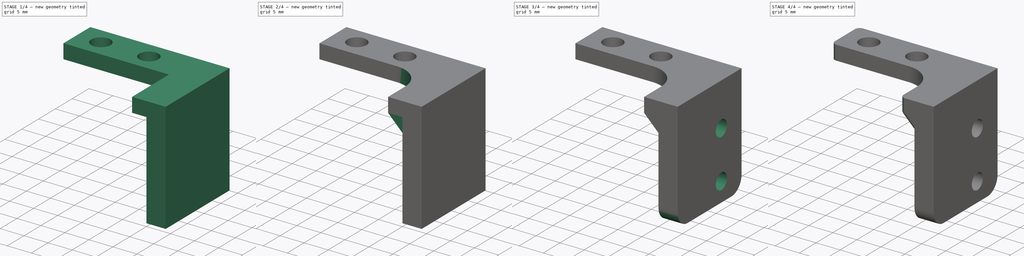
[diagram: build sequence overview — one tinted view per stage of 4, left to right]
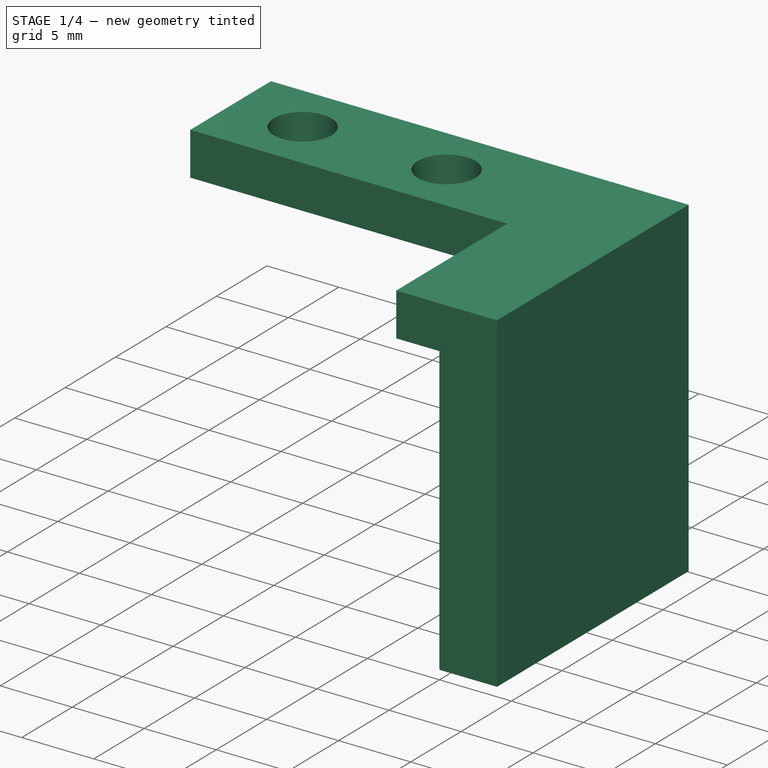
[diagram: stage 1 of 4 — iso view after this stage's code; geometry added in this stage tinted green]
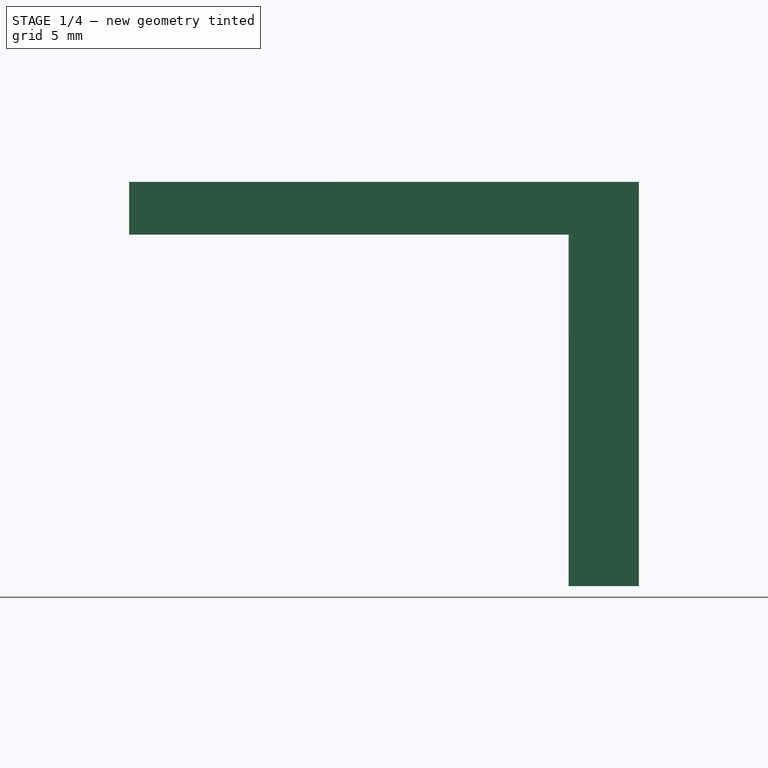
[diagram: stage 1 of 4 — front view after this stage's code; geometry added in this stage tinted green]
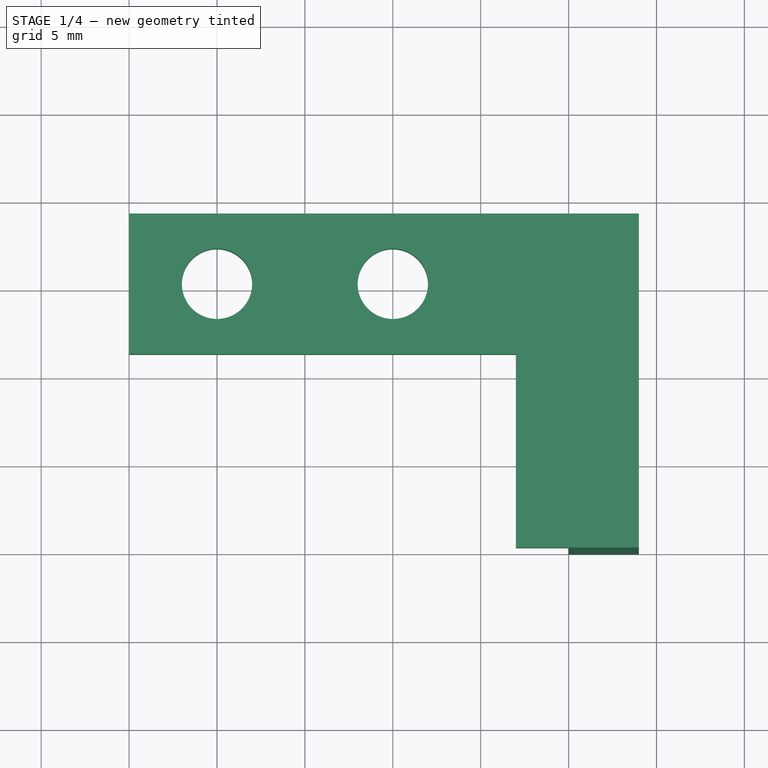
[diagram: stage 1 of 4 — top view after this stage's code; geometry added in this stage tinted green]
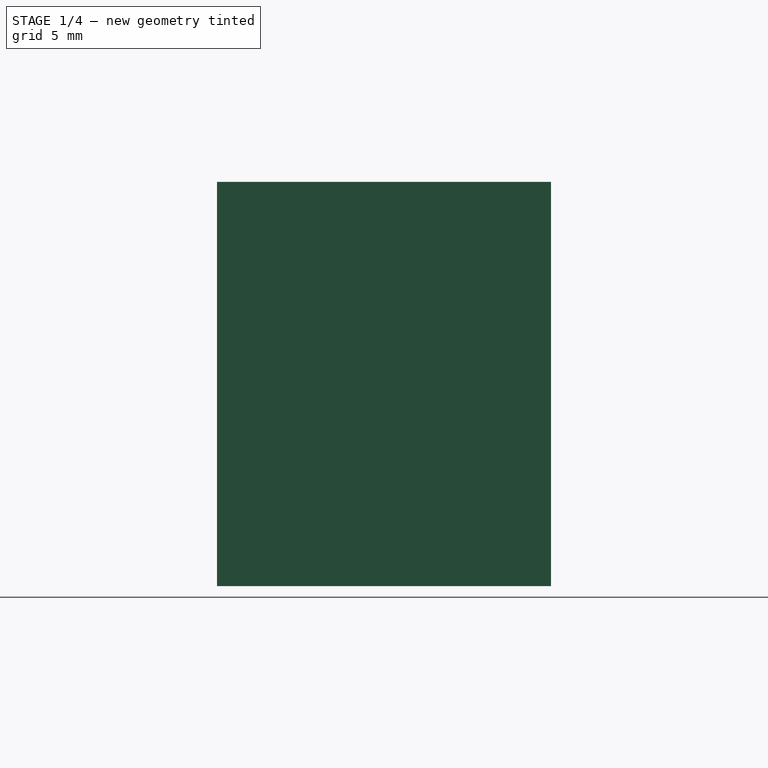
[diagram: stage 1 of 4 — right view after this stage's code; geometry added in this stage tinted green]
FCSTD DOCUMENT  (FreeCAD 0.19R24276 (Git))
Label: pcb_holder
License: All rights reserved
LicenseURL: http://en.wikipedia.org/wiki/All_rights_reserved
objects: Sketcher::SketchObject×5, PartDesign::Fillet×4, PartDesign::Pad×3, PartDesign::Pocket×2, PartDesign::Body×1
note: 24 computed .brp shape members not serialized (recipe doc carries the construction recipe); baked Part::Feature solids carry a one-line shape summary decoded from their .brp

FEATURE [Sketcher::SketchObject] Sketch
  FullyConstrained = true
  MapMode = 5
  Support = -> [XY_Plane]
  sketch-geometry (9):
    g0: Circle CenterX=-5 CenterY=15 CenterZ=0 NormalX=0 NormalY=0 NormalZ=1 AngleXU=0 Radius=2
    g1: Circle CenterX=5 CenterY=15 CenterZ=0 NormalX=0 NormalY=0 NormalZ=1 AngleXU=0 Radius=2
    g2: LineSegment StartX=12 StartY=11 StartZ=0 EndX=-10 EndY=11 EndZ=0
    g3: LineSegment StartX=-10 StartY=11 StartZ=0 EndX=-10 EndY=19 EndZ=0
    g4: LineSegment StartX=0 StartY=0 StartZ=0 EndX=0 EndY=15 EndZ=0
    g5: LineSegment StartX=19 StartY=19 StartZ=0 EndX=19 EndY=0 EndZ=0
    g6: LineSegment StartX=19 StartY=-7e-16 StartZ=0 EndX=12 EndY=-7e-16 EndZ=0
    g7: LineSegment StartX=12 StartY=-7e-16 StartZ=0 EndX=12 EndY=11 EndZ=0
    g8: LineSegment StartX=-10 StartY=19 StartZ=0 EndX=19 EndY=19 EndZ=0
  constraints (26):
    c: Horizontal(g0,g1)
    c: Diameter(g0) = 4
    c: Equal(g1,g0)
    c: Coincident(g2,g3)
    c: Horizontal(g2)
    c: Vertical(g3)
    c: DistanceX(g0,g1) = 10
    c: Coincident(g4,g-1)
    c: PointOnObject(g4,g-2)
    c: Symmetric(g0,g1,g4)
    c: DistanceX(g2,g4) = 10
    c: Coincident(g5,g6)
    c: Horizontal(g6)
    c: Vertical(g5)
    c: DistanceX(g6,g6) = 7
    c: DistanceY(g2,g3) = 8
    c: DistanceX(g2,g2) = 22
    c: DistanceY(g0,g3) = 4
    c: DistanceY(g-1,g4) = 15
    c: Coincident(g7,g6)
    c: Coincident(g7,g2)
    c: Vertical(g7)
    c: DistanceY(g7,g7) = 11
    c: Coincident(g8,g3)
    c: Coincident(g8,g5)
    c: Horizontal(g8)
FEATURE [PartDesign::Pad] Pad
  Direction = (1,1,1)
  Length = 3
  Length2 = 100
  Profile = -> Sketch
  Type = 0
FEATURE [Sketcher::SketchObject] Sketch002
  FullyConstrained = true
  MapMode = 5
  Placement = pos=(0,0,0) rot=(1,0,0;3.14159rad)
  Support = -> [Pad]
  sketch-geometry (4):
    g0: LineSegment StartX=15 StartY=0 StartZ=0 EndX=19 EndY=0 EndZ=0
    g1: LineSegment StartX=19 StartY=0 StartZ=0 EndX=19 EndY=-19 EndZ=0
    g2: LineSegment StartX=19 StartY=-19 StartZ=0 EndX=15 EndY=-19 EndZ=0
    g3: LineSegment StartX=15 StartY=-19 StartZ=0 EndX=15 EndY=0 EndZ=0
  constraints (12):
    c: Coincident(g0,g1)
    c: Coincident(g1,g2)
    c: Coincident(g2,g3)
    c: Coincident(g3,g0)
    c: Horizontal(g0)
    c: Horizontal(g2)
    c: Vertical(g1)
    c: Vertical(g3)
    c: DistanceY(g-1,g0) = 0
    c: DistanceX(g-1,g0) = 19
    c: DistanceX(g0,g0) = 4
    c: DistanceY(g2,g-1) = 19
FEATURE [PartDesign::Pad] Pad001
  BaseFeature = -> Pad
  Direction = (1,1,1)
  Length = 20
  Length2 = 100
  Profile = -> Sketch002
  Type = 0
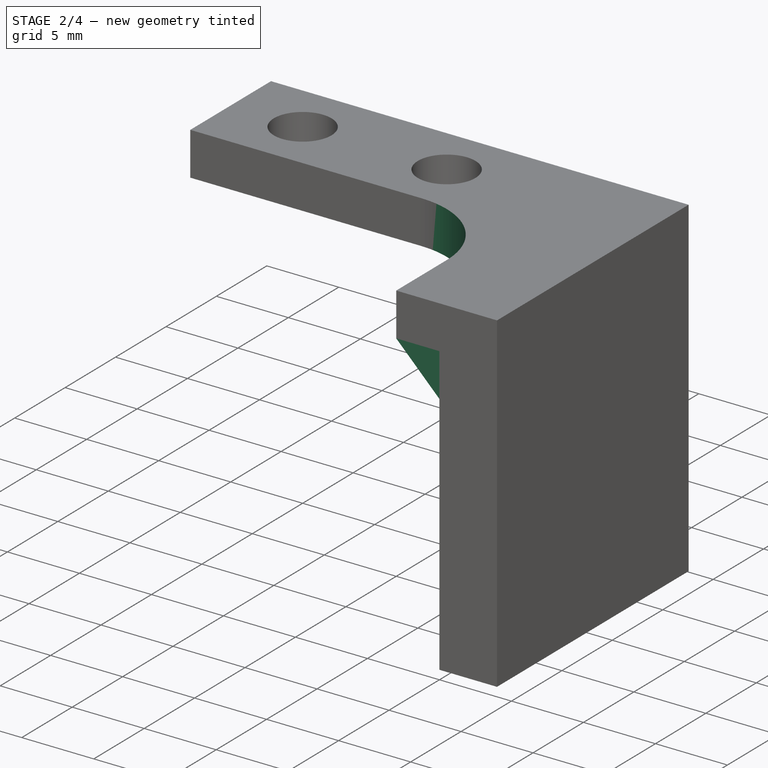
[diagram: stage 2 of 4 — iso view after this stage's code; geometry added in this stage tinted green]
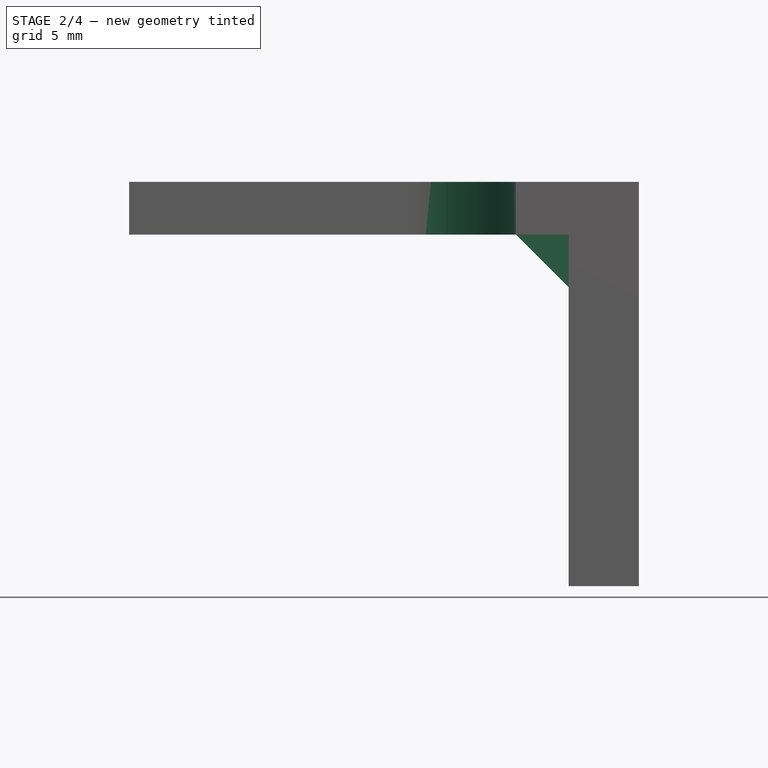
[diagram: stage 2 of 4 — front view after this stage's code; geometry added in this stage tinted green]
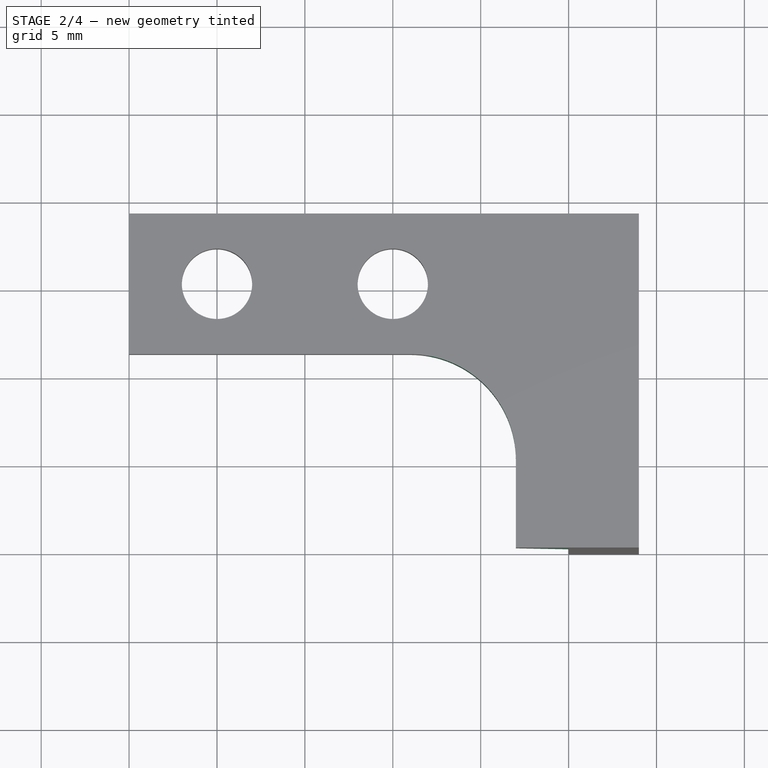
[diagram: stage 2 of 4 — top view after this stage's code; geometry added in this stage tinted green]
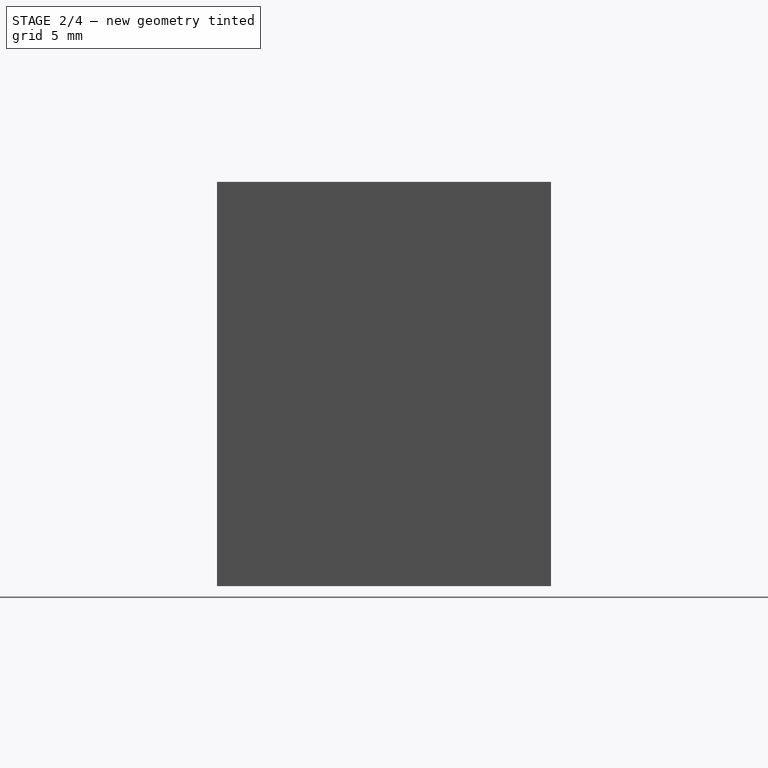
[diagram: stage 2 of 4 — right view after this stage's code; geometry added in this stage tinted green]
FEATURE [Sketcher::SketchObject] Sketch003
  FullyConstrained = true
  MapMode = 5
  Placement = pos=(19,0,0) rot=(0.57735,0.57735,0.57735;2.0944rad)
  Support = -> [Pad001]
  sketch-geometry (2):
    g0: Circle CenterX=13 CenterY=-6 CenterZ=0 NormalX=0 NormalY=0 NormalZ=1 AngleXU=0 Radius=1.65
    g1: Circle CenterX=13 CenterY=-16 CenterZ=0 NormalX=0 NormalY=0 NormalZ=1 AngleXU=0 Radius=1.65
  constraints (6):
    c: Vertical(g1,g0)
    c: DistanceX(g-1,g0) = 13
    c: Diameter(g0) = 3.3
    c: Equal(g0,g1)
    c: DistanceY(g1,g0) = 10
    c: DistanceY(g0,g-1) = 6
FEATURE [PartDesign::Fillet] Fillet
  Base = -> Pad001 [Edge1]
  BaseFeature = -> Pad001
  Radius = 6
  SupportTransform = false
FEATURE [Sketcher::SketchObject] Sketch004
  FullyConstrained = true
  MapMode = 5
  Placement = pos=(0,-7e-16,0) rot=(1,0,0;1.5708rad)
  Support = -> [Fillet]
  sketch-geometry (3):
    g0: LineSegment StartX=12 StartY=0 StartZ=0 EndX=15 EndY=0 EndZ=0
    g1: LineSegment StartX=15 StartY=0 StartZ=0 EndX=15 EndY=-3 EndZ=0
    g2: LineSegment StartX=15 StartY=-3 StartZ=0 EndX=12 EndY=0 EndZ=0
  constraints (9):
    c: PointOnObject(g0,g-1)
    c: Coincident(g1,g0)
    c: Vertical(g1)
    c: Coincident(g2,g1)
    c: Coincident(g2,g0)
    c: DistanceX(g-1,g0) = 15
    c: DistanceX(g-1,g0) = 12
    c: DistanceY(g1,g0) = 3
    c: Horizontal(g0)
FEATURE [PartDesign::Pad] Pad002
  BaseFeature = -> Fillet
  Direction = (1,1,1)
  Length = 19
  Length2 = 100
  Profile = -> Sketch004
  Reversed = true
  Type = 0
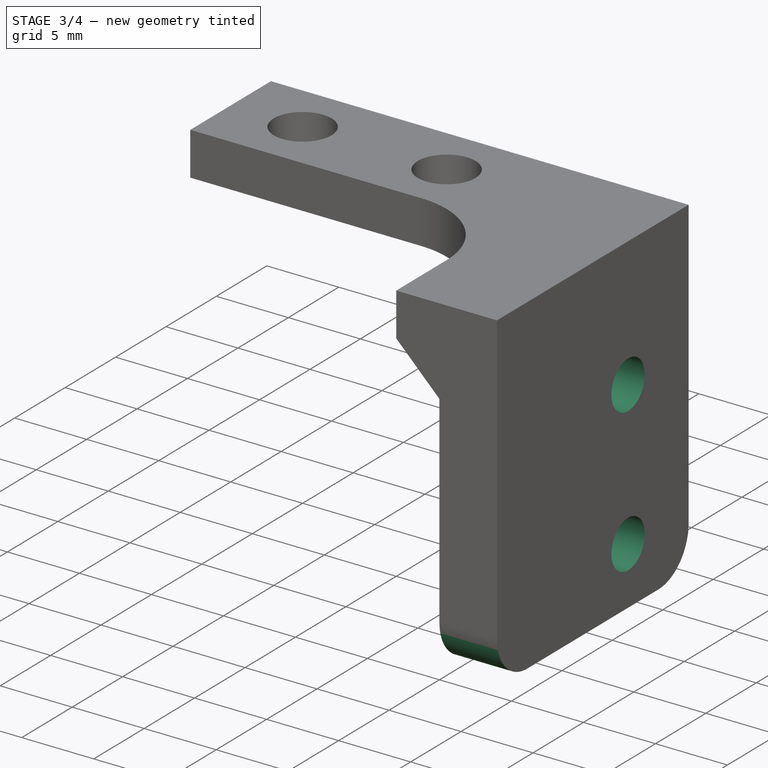
[diagram: stage 3 of 4 — iso view after this stage's code; geometry added in this stage tinted green]
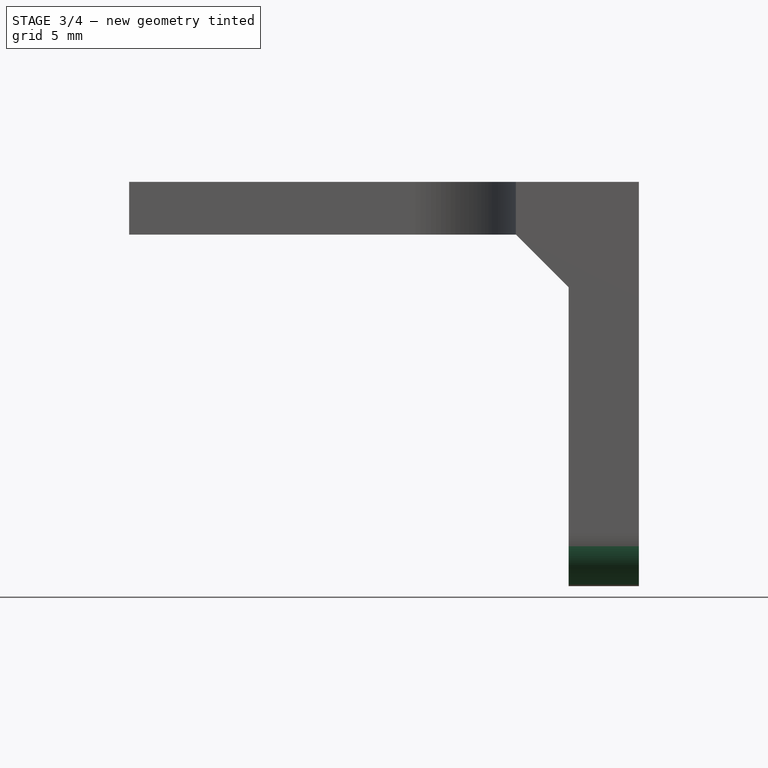
[diagram: stage 3 of 4 — front view after this stage's code; geometry added in this stage tinted green]
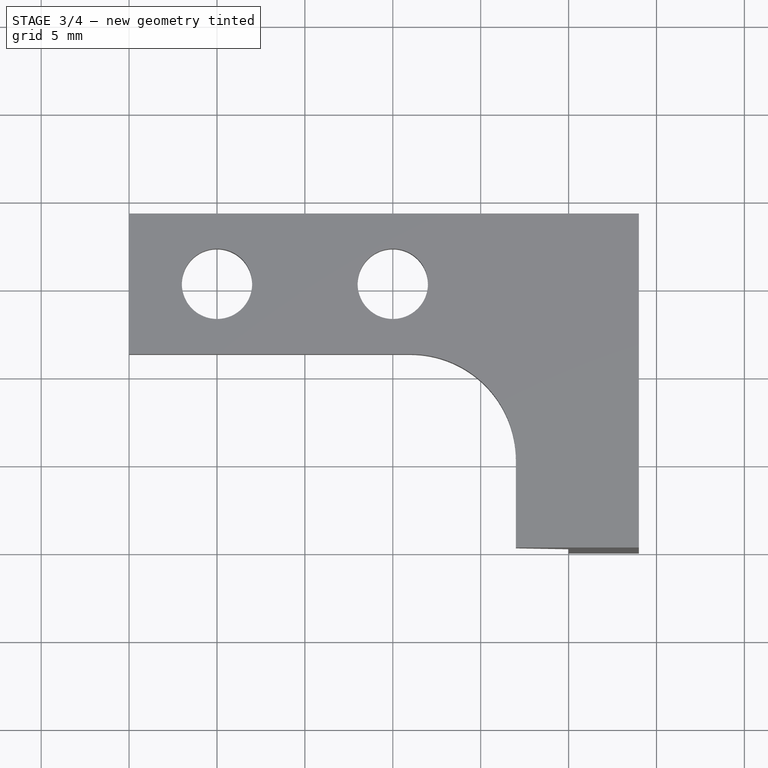
[diagram: stage 3 of 4 — top view after this stage's code; geometry added in this stage tinted green]
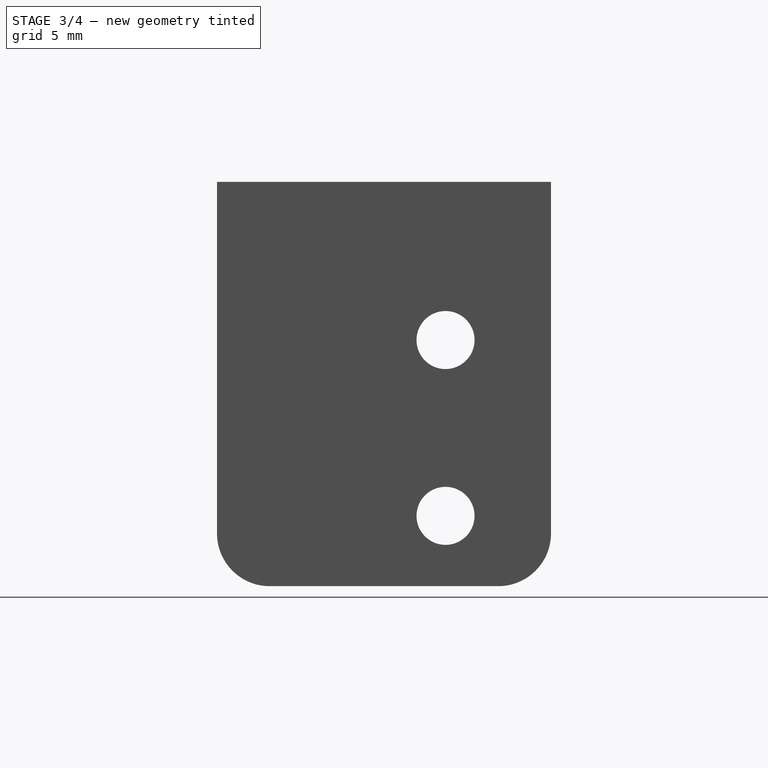
[diagram: stage 3 of 4 — right view after this stage's code; geometry added in this stage tinted green]
FEATURE [PartDesign::Pocket] Pocket
  BaseFeature = -> Pad002
  Length = 5
  Length2 = 100
  Profile = -> Sketch003
  Type = 1
FEATURE [Sketcher::SketchObject] Sketch005
  FullyConstrained = false
  MapMode = 5
  Placement = pos=(15,0,0) rot=(0.57735,-0.57735,-0.57735;2.0944rad)
  Support = -> [Pocket]
  sketch-geometry (1):
    g0: Circle CenterX=-13.1053 CenterY=-5.955 CenterZ=0 NormalX=0 NormalY=0 NormalZ=1 AngleXU=0 Radius=3.75
  constraints (1):
    c: Diameter(g0) = 7.5
FEATURE [PartDesign::Pocket] Pocket001
  BaseFeature = -> Pocket
  Length = 5
  Length2 = 100
  Profile = -> Sketch005
  Reversed = true
  Type = 1
FEATURE [PartDesign::Fillet] Fillet001
  Base = -> Pocket001 [Edge49,Edge47]
  BaseFeature = -> Pocket001
  Radius = 3
  SupportTransform = false
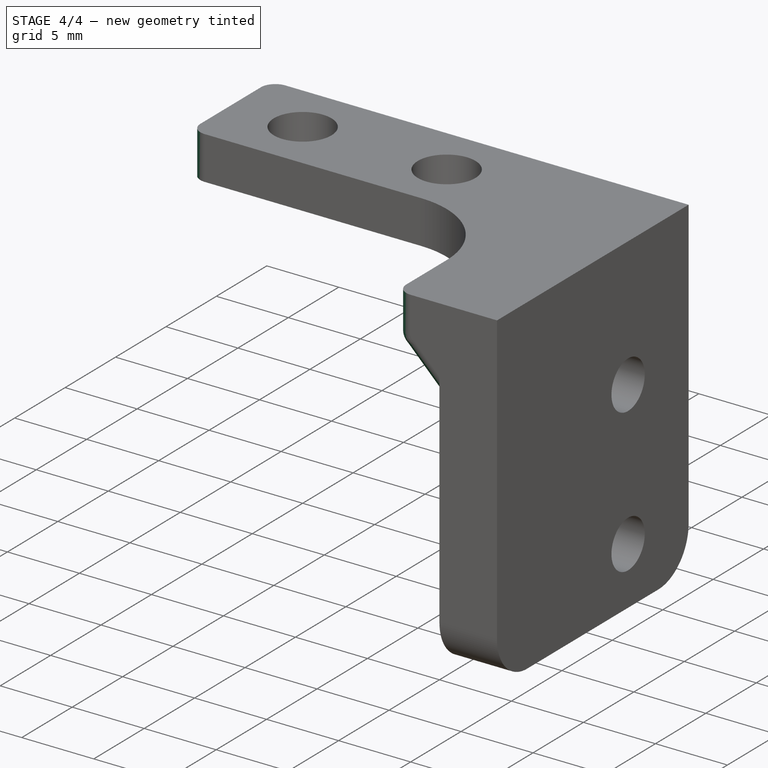
[diagram: stage 4 of 4 — iso view after this stage's code; geometry added in this stage tinted green]
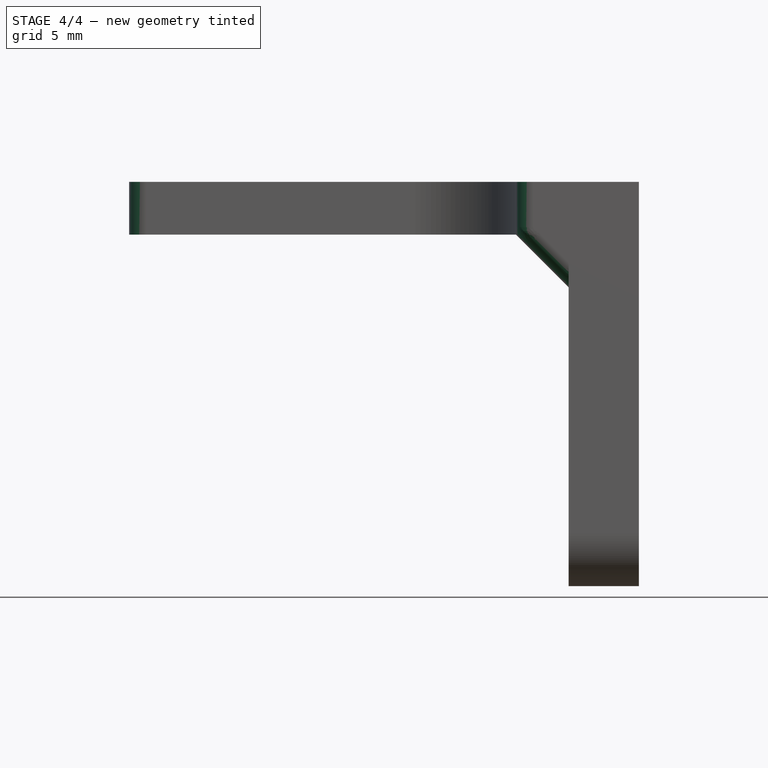
[diagram: stage 4 of 4 — front view after this stage's code; geometry added in this stage tinted green]
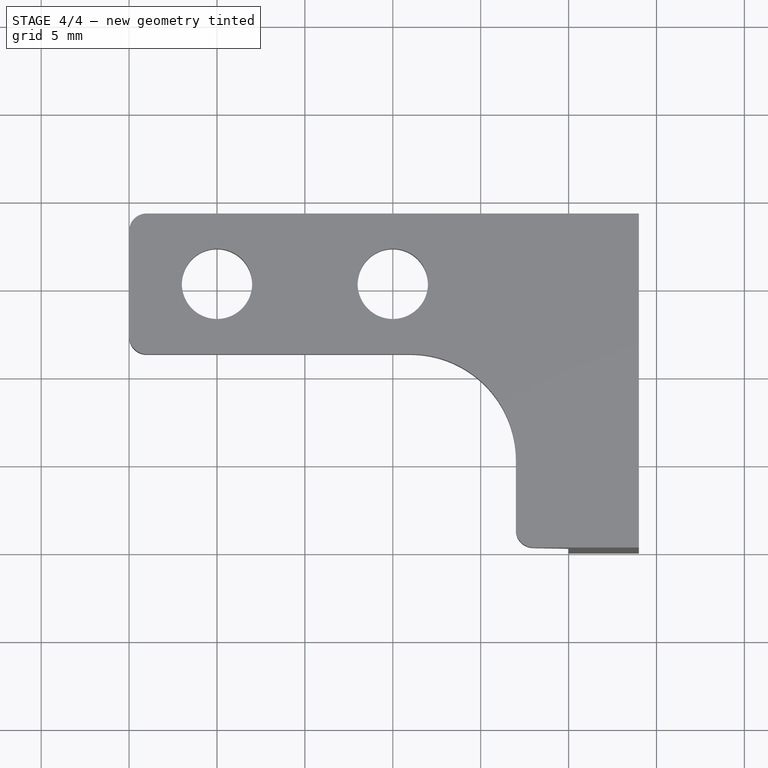
[diagram: stage 4 of 4 — top view after this stage's code; geometry added in this stage tinted green]
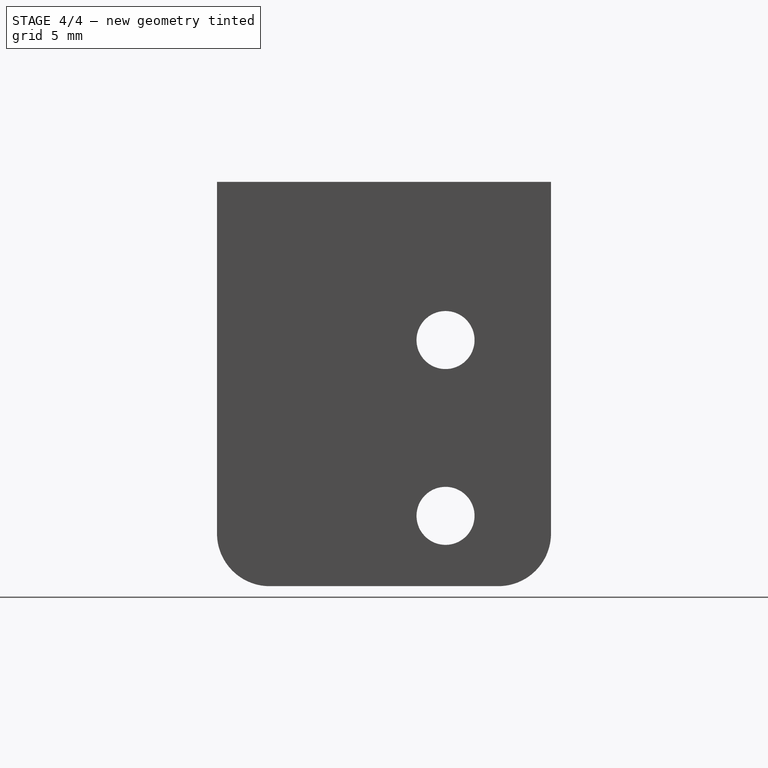
[diagram: stage 4 of 4 — right view after this stage's code; geometry added in this stage tinted green]
FEATURE [PartDesign::Fillet] Fillet002
  Base = -> Fillet001 [Edge60,Edge50]
  BaseFeature = -> Fillet001
  Radius = 1
  SupportTransform = false
FEATURE [PartDesign::Fillet] Fillet003
  Base = -> Fillet002 [Edge17,Edge46]
  BaseFeature = -> Fillet002
  Radius = 1
  SupportTransform = false
FEATURE [PartDesign::Body] Body
  Group = -> [Sketch,Pad,Sketch002,Pad001,Sketch003,Fillet,Sketch004,Pad002,Pocket,Sketch005,Pocket001,Fillet001,Fillet002,Fillet003]
  Origin = -> Origin
  Tip = -> Fillet003
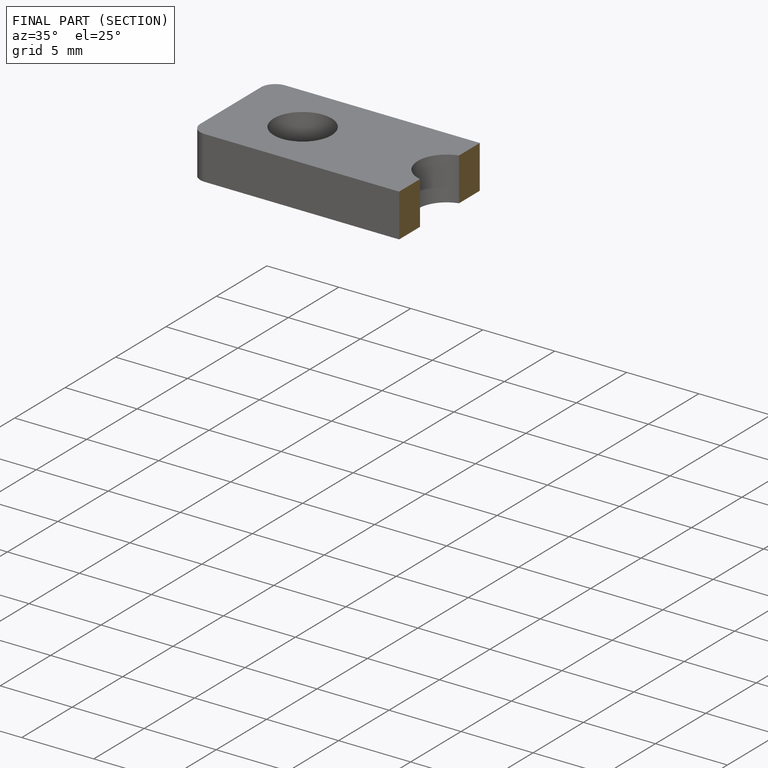
[diagram: finished part — half-section view (interior)]
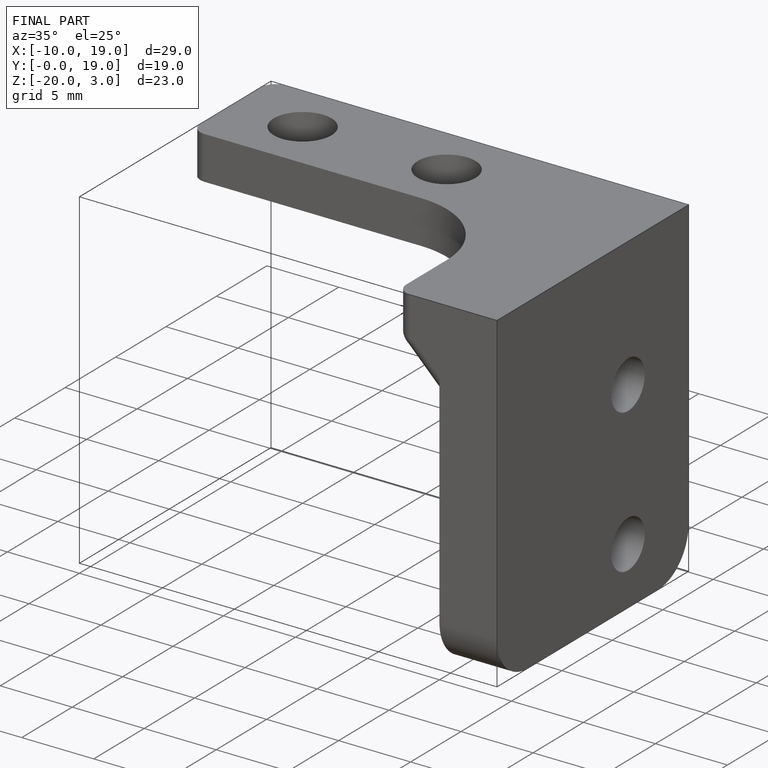
[diagram: finished part — iso view with bounding-box wireframe]
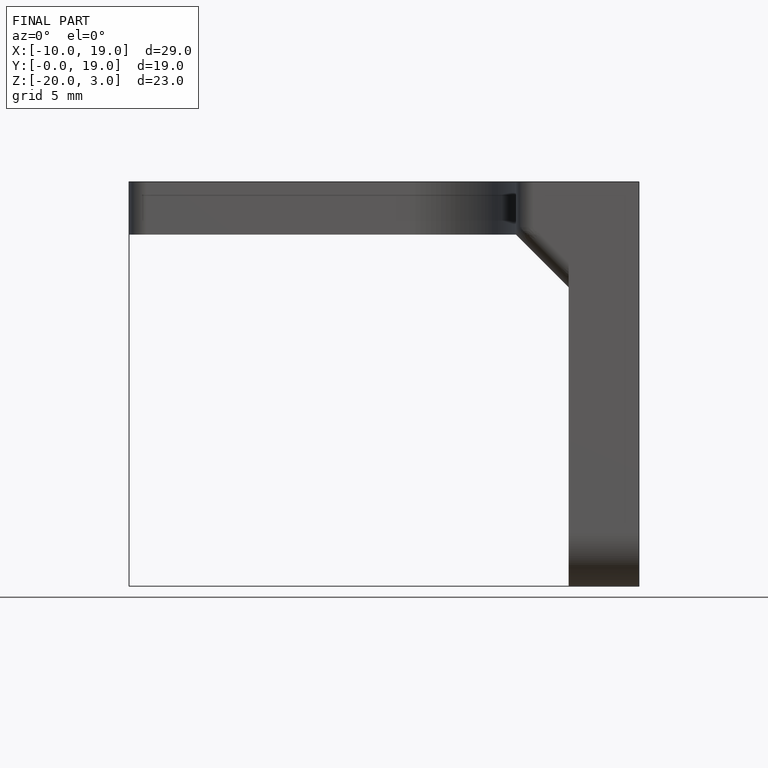
[diagram: finished part — front view with bounding-box wireframe]
